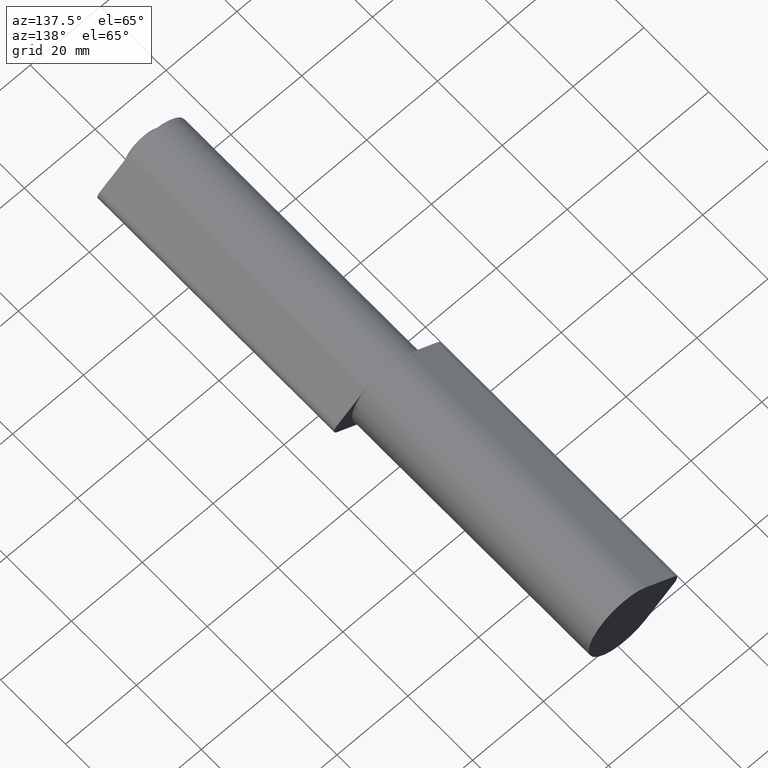
[diagram: clean part render]
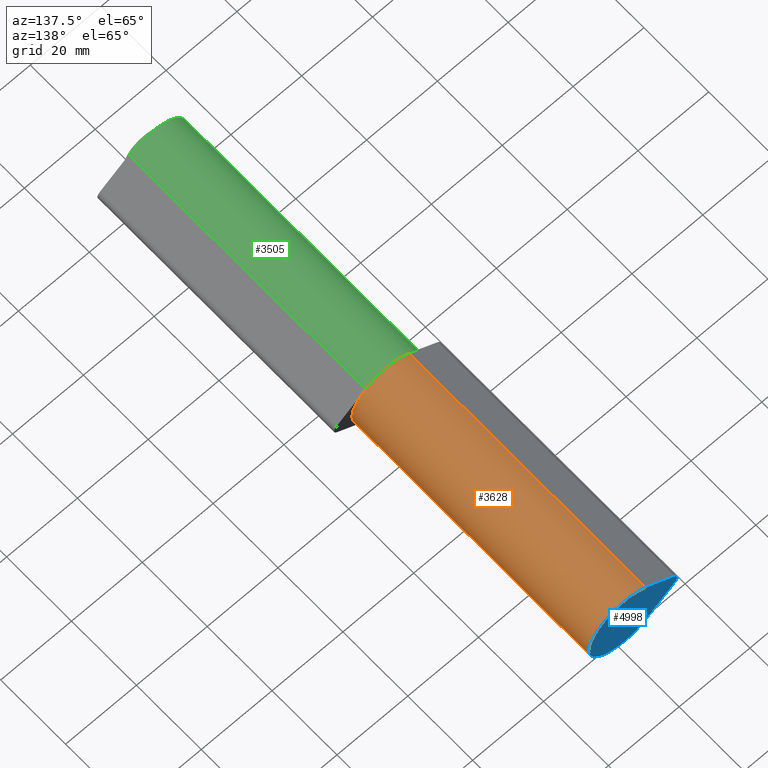
[diagram: same view with three faces highlighted in distinct colors, each labeled with its STEP entity id]
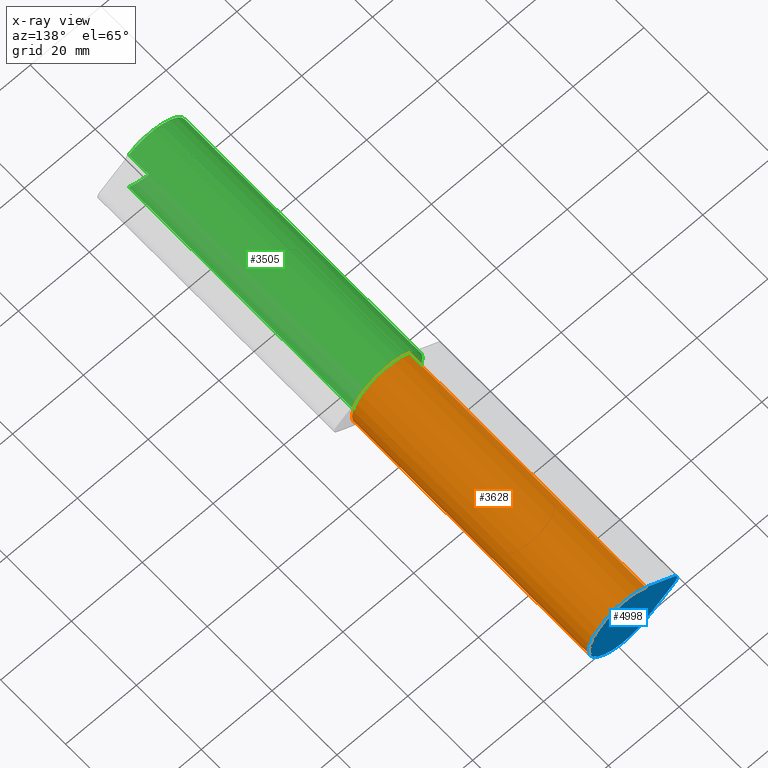
[diagram: x-ray of the same camera — body ghosted, the three highlighted faces saturated]
A machine part, auxiliary view with three faces highlighted in distinct colors.
The next image is the same camera in x-ray (body ghosted, the three faces saturated) — at least one of them is partly hidden behind the body in this view.
Their STEP definitions:

[orange] entity #3628 — the highlighted cylindrical surface (partial cylindrical patch) has radius 10 mm, axis along (0, 1, -0).
#235 = CARTESIAN_POINT ( 'NONE',  ( 6.153846153846156852, -36.50000000000000000, -7.882269819968920288 ) ) ;
#426 = VERTEX_POINT ( 'NONE', #10888 ) ;
#645 = EDGE_CURVE ( 'NONE', #426, #6349, #8541, .T. ) ;
#1154 = VECTOR ( 'NONE', #10325, 1000.000000000000000 ) ;
#1317 = CIRCLE ( 'NONE', #5385, 10.00000000000000000 ) ;
#1360 = EDGE_CURVE ( 'NONE', #426, #13568, #3267, .T. ) ;
#2520 = EDGE_LOOP ( 'NONE', ( #8756, #11307, #7175, #10749 ) ) ;
#2995 = CARTESIAN_POINT ( 'NONE',  ( 0.000000000000000000, 36.50000000000000000, 0.000000000000000000 ) ) ;
#3267 = LINE ( 'NONE', #12746, #11876 ) ;
#3628 = ADVANCED_FACE ( 'NONE', ( #6608 ), #4249, .T. ) ;
#3683 = LINE ( 'NONE', #9266, #1154 ) ;
#4089 = DIRECTION ( 'NONE',  ( 0.000000000000000000, 0.000000000000000000, -1.000000000000000000 ) ) ;
#4249 = CYLINDRICAL_SURFACE ( 'NONE', #11522, 10.00000000000000000 ) ;
#5385 = AXIS2_PLACEMENT_3D ( 'NONE', #10680, #11748, #13926 ) ;
#6349 = VERTEX_POINT ( 'NONE', #10350 ) ;
#6608 = FACE_OUTER_BOUND ( 'NONE', #2520, .T. ) ;
#7175 = ORIENTED_EDGE ( 'NONE', *, *, #645, .F. ) ;
#7483 = DIRECTION ( 'NONE',  ( -0.000000000000000000, -1.000000000000000000, -0.000000000000000000 ) ) ;
#8410 = EDGE_CURVE ( 'NONE', #6349, #13899, #3683, .T. ) ;
#8541 = CIRCLE ( 'NONE', #9895, 10.00000000000000000 ) ;
#8756 = ORIENTED_EDGE ( 'NONE', *, *, #12155, .T. ) ;
#9266 = CARTESIAN_POINT ( 'NONE',  ( 6.153846153846155076, 36.50000000000000000, 7.882269819968922064 ) ) ;
#9656 = DIRECTION ( 'NONE',  ( -0.000000000000000000, -1.000000000000000000, -0.000000000000000000 ) ) ;
#9837 = CARTESIAN_POINT ( 'NONE',  ( 6.153846153846155076, -36.50000000000000000, 7.882269819968922064 ) ) ;
#9895 = AXIS2_PLACEMENT_3D ( 'NONE', #2995, #12653, #10417 ) ;
#10325 = DIRECTION ( 'NONE',  ( -0.000000000000000000, -1.000000000000000000, -0.000000000000000000 ) ) ;
#10350 = CARTESIAN_POINT ( 'NONE',  ( 6.153846153846155076, 36.50000000000000000, 7.882269819968922064 ) ) ;
#10417 = DIRECTION ( 'NONE',  ( 0.000000000000000000, 0.000000000000000000, 1.000000000000000000 ) ) ;
#10680 = CARTESIAN_POINT ( 'NONE',  ( 0.000000000000000000, -36.50000000000000000, 0.000000000000000000 ) ) ;
#10749 = ORIENTED_EDGE ( 'NONE', *, *, #1360, .T. ) ;
#10888 = CARTESIAN_POINT ( 'NONE',  ( 6.153846153846156852, 36.50000000000000000, -7.882269819968920288 ) ) ;
#11307 = ORIENTED_EDGE ( 'NONE', *, *, #8410, .F. ) ;
#11522 = AXIS2_PLACEMENT_3D ( 'NONE', #13846, #9656, #4089 ) ;
#11748 = DIRECTION ( 'NONE',  ( 0.000000000000000000, 1.000000000000000000, 0.000000000000000000 ) ) ;
#11876 = VECTOR ( 'NONE', #7483, 1000.000000000000000 ) ;
#12155 = EDGE_CURVE ( 'NONE', #13568, #13899, #1317, .T. ) ;
#12653 = DIRECTION ( 'NONE',  ( 0.000000000000000000, 1.000000000000000000, 0.000000000000000000 ) ) ;
#12746 = CARTESIAN_POINT ( 'NONE',  ( 6.153846153846156852, 36.50000000000000000, -7.882269819968920288 ) ) ;
#13568 = VERTEX_POINT ( 'NONE', #235 ) ;
#13846 = CARTESIAN_POINT ( 'NONE',  ( 0.000000000000000000, 36.50000000000000000, 0.000000000000000000 ) ) ;
#13899 = VERTEX_POINT ( 'NONE', #9837 ) ;
#13926 = DIRECTION ( 'NONE',  ( 0.000000000000000000, 0.000000000000000000, 1.000000000000000000 ) ) ;

[blue] entity #4998 — the highlighted planar face has unit normal (0, -1, 0).
#235 = CARTESIAN_POINT ( 'NONE',  ( 6.153846153846156852, -36.50000000000000000, -7.882269819968920288 ) ) ;
#1317 = CIRCLE ( 'NONE', #5385, 10.00000000000000000 ) ;
#1407 = EDGE_CURVE ( 'NONE', #6758, #12700, #3770, .T. ) ;
#1593 = AXIS2_PLACEMENT_3D ( 'NONE', #3411, #5390, #4508 ) ;
#2239 = ORIENTED_EDGE ( 'NONE', *, *, #9082, .F. ) ;
#3411 = CARTESIAN_POINT ( 'NONE',  ( 13.00000000000000000, -36.50000000000000000, 0.000000000000000000 ) ) ;
#3490 = VECTOR ( 'NONE', #10456, 1000.000000000000000 ) ;
#3770 = CIRCLE ( 'NONE', #1593, 2.000000000000000888 ) ;
#4265 = CARTESIAN_POINT ( 'NONE',  ( 14.23076923076923173, -36.50000000000000000, -1.576453963993785123 ) ) ;
#4508 = DIRECTION ( 'NONE',  ( 0.000000000000000000, 0.000000000000000000, 1.000000000000000000 ) ) ;
#4998 = ADVANCED_FACE ( 'NONE', ( #12482 ), #12651, .F. ) ;
#5118 = DIRECTION ( 'NONE',  ( 0.000000000000000000, -0.000000000000000000, 1.000000000000000000 ) ) ;
#5385 = AXIS2_PLACEMENT_3D ( 'NONE', #10680, #11748, #13926 ) ;
#5390 = DIRECTION ( 'NONE',  ( 0.000000000000000000, 1.000000000000000000, 0.000000000000000000 ) ) ;
#6059 = CARTESIAN_POINT ( 'NONE',  ( 14.23076923076923173, -36.50000000000000000, 1.576453963993785123 ) ) ;
#6345 = ORIENTED_EDGE ( 'NONE', *, *, #1407, .F. ) ;
#6696 = LINE ( 'NONE', #6059, #3490 ) ;
#6758 = VERTEX_POINT ( 'NONE', #13645 ) ;
#7942 = EDGE_LOOP ( 'NONE', ( #6345, #10845, #9381, #2239 ) ) ;
#8347 = CARTESIAN_POINT ( 'NONE',  ( 13.00000000000000000, -36.50000000000000000, 0.000000000000000000 ) ) ;
#8629 = AXIS2_PLACEMENT_3D ( 'NONE', #8347, #13803, #5118 ) ;
#8739 = DIRECTION ( 'NONE',  ( -0.7882269819968921176, 0.000000000000000000, -0.6153846153846154188 ) ) ;
#9082 = EDGE_CURVE ( 'NONE', #12700, #13568, #9116, .T. ) ;
#9116 = LINE ( 'NONE', #4265, #11118 ) ;
#9381 = ORIENTED_EDGE ( 'NONE', *, *, #12155, .F. ) ;
#9668 = CARTESIAN_POINT ( 'NONE',  ( 14.23076923076923173, -36.50000000000000000, -1.576453963993785123 ) ) ;
#9837 = CARTESIAN_POINT ( 'NONE',  ( 6.153846153846155076, -36.50000000000000000, 7.882269819968922064 ) ) ;
#10456 = DIRECTION ( 'NONE',  ( 0.7882269819968921176, -0.000000000000000000, -0.6153846153846154188 ) ) ;
#10680 = CARTESIAN_POINT ( 'NONE',  ( 0.000000000000000000, -36.50000000000000000, 0.000000000000000000 ) ) ;
#10845 = ORIENTED_EDGE ( 'NONE', *, *, #10896, .F. ) ;
#10896 = EDGE_CURVE ( 'NONE', #13899, #6758, #6696, .T. ) ;
#11118 = VECTOR ( 'NONE', #8739, 1000.000000000000000 ) ;
#11748 = DIRECTION ( 'NONE',  ( 0.000000000000000000, 1.000000000000000000, 0.000000000000000000 ) ) ;
#12155 = EDGE_CURVE ( 'NONE', #13568, #13899, #1317, .T. ) ;
#12482 = FACE_OUTER_BOUND ( 'NONE', #7942, .T. ) ;
#12651 = PLANE ( 'NONE',  #8629 ) ;
#12700 = VERTEX_POINT ( 'NONE', #9668 ) ;
#13568 = VERTEX_POINT ( 'NONE', #235 ) ;
#13645 = CARTESIAN_POINT ( 'NONE',  ( 14.23076923076923173, -36.50000000000000000, 1.576453963993785123 ) ) ;
#13803 = DIRECTION ( 'NONE',  ( 0.000000000000000000, 1.000000000000000000, 0.000000000000000000 ) ) ;
#13899 = VERTEX_POINT ( 'NONE', #9837 ) ;
#13926 = DIRECTION ( 'NONE',  ( 0.000000000000000000, 0.000000000000000000, 1.000000000000000000 ) ) ;

[green] entity #3505 — the highlighted cylindrical surface (partial cylindrical patch) has radius 10 mm, axis along (-0, -1, -0).
#534 = ORIENTED_EDGE ( 'NONE', *, *, #7859, .T. ) ;
#979 = EDGE_CURVE ( 'NONE', #11499, #1441, #8732, .T. ) ;
#1441 = VERTEX_POINT ( 'NONE', #13367 ) ;
#1542 = ORIENTED_EDGE ( 'NONE', *, *, #5856, .T. ) ;
#1738 = CARTESIAN_POINT ( 'NONE',  ( 0.000000000000000000, -36.50000000000000000, 0.000000000000000000 ) ) ;
#2335 = CARTESIAN_POINT ( 'NONE',  ( 0.000000000000000000, 36.50000000000000000, 0.000000000000000000 ) ) ;
#2600 = VECTOR ( 'NONE', #11394, 1000.000000000000000 ) ;
#3464 = DIRECTION ( 'NONE',  ( -0.000000000000000000, -1.000000000000000000, -0.000000000000000000 ) ) ;
#3505 = ADVANCED_FACE ( 'NONE', ( #7811 ), #12862, .T. ) ;
#4007 = DIRECTION ( 'NONE',  ( 0.000000000000000000, 0.000000000000000000, 1.000000000000000000 ) ) ;
#4473 = DIRECTION ( 'NONE',  ( 0.000000000000000000, 1.000000000000000000, 0.000000000000000000 ) ) ;
#4819 = VERTEX_POINT ( 'NONE', #13625 ) ;
#4939 = EDGE_LOOP ( 'NONE', ( #1542, #8060, #11228, #534 ) ) ;
#5484 = AXIS2_PLACEMENT_3D ( 'NONE', #1738, #13676, #4007 ) ;
#5728 = AXIS2_PLACEMENT_3D ( 'NONE', #10316, #11167, #9168 ) ;
#5856 = EDGE_CURVE ( 'NONE', #4819, #1441, #6404, .T. ) ;
#6404 = CIRCLE ( 'NONE', #5484, 10.00000000000000000 ) ;
#6771 = CARTESIAN_POINT ( 'NONE',  ( 6.153846153846155076, 36.50000000000000000, 7.882269819968922064 ) ) ;
#7195 = AXIS2_PLACEMENT_3D ( 'NONE', #2335, #4473, #12007 ) ;
#7811 = FACE_OUTER_BOUND ( 'NONE', #4939, .T. ) ;
#7859 = EDGE_CURVE ( 'NONE', #8209, #4819, #10962, .T. ) ;
#7927 = VECTOR ( 'NONE', #3464, 1000.000000000000000 ) ;
#8060 = ORIENTED_EDGE ( 'NONE', *, *, #979, .F. ) ;
#8209 = VERTEX_POINT ( 'NONE', #11226 ) ;
#8732 = LINE ( 'NONE', #6771, #2600 ) ;
#8875 = CARTESIAN_POINT ( 'NONE',  ( 6.153846153846156852, 36.50000000000000000, -7.882269819968920288 ) ) ;
#9168 = DIRECTION ( 'NONE',  ( 0.000000000000000000, 0.000000000000000000, -1.000000000000000000 ) ) ;
#9909 = CIRCLE ( 'NONE', #7195, 10.00000000000000000 ) ;
#10316 = CARTESIAN_POINT ( 'NONE',  ( 0.000000000000000000, 36.50000000000000000, 0.000000000000000000 ) ) ;
#10962 = LINE ( 'NONE', #8875, #7927 ) ;
#11167 = DIRECTION ( 'NONE',  ( -0.000000000000000000, -1.000000000000000000, -0.000000000000000000 ) ) ;
#11226 = CARTESIAN_POINT ( 'NONE',  ( 6.153846153846156852, 36.50000000000000000, -7.882269819968920288 ) ) ;
#11228 = ORIENTED_EDGE ( 'NONE', *, *, #11382, .F. ) ;
#11382 = EDGE_CURVE ( 'NONE', #8209, #11499, #9909, .T. ) ;
#11394 = DIRECTION ( 'NONE',  ( -0.000000000000000000, -1.000000000000000000, -0.000000000000000000 ) ) ;
#11499 = VERTEX_POINT ( 'NONE', #13101 ) ;
#12007 = DIRECTION ( 'NONE',  ( 0.000000000000000000, 0.000000000000000000, 1.000000000000000000 ) ) ;
#12862 = CYLINDRICAL_SURFACE ( 'NONE', #5728, 10.00000000000000000 ) ;
#13101 = CARTESIAN_POINT ( 'NONE',  ( 6.153846153846155076, 36.50000000000000000, 7.882269819968922064 ) ) ;
#13367 = CARTESIAN_POINT ( 'NONE',  ( 6.153846153846155076, -36.50000000000000000, 7.882269819968922064 ) ) ;
#13625 = CARTESIAN_POINT ( 'NONE',  ( 6.153846153846156852, -36.50000000000000000, -7.882269819968920288 ) ) ;
#13676 = DIRECTION ( 'NONE',  ( 0.000000000000000000, 1.000000000000000000, 0.000000000000000000 ) ) ;